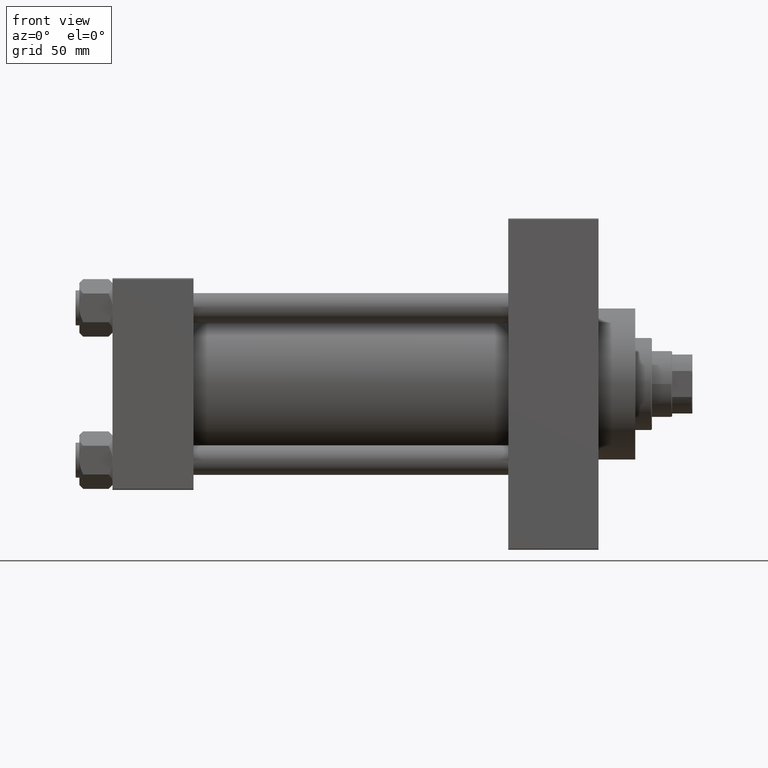
[diagram: clean part render]
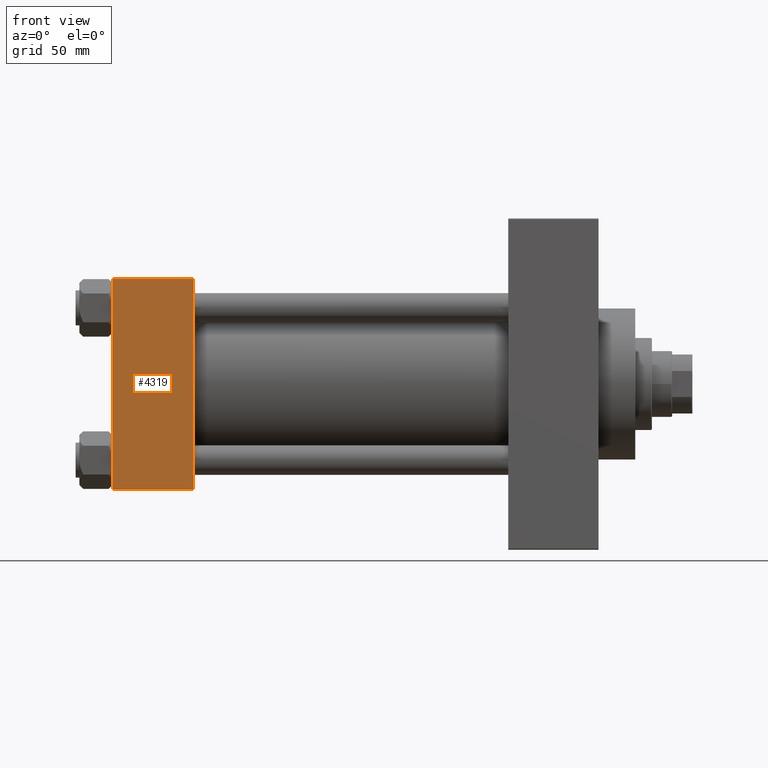
[diagram: same view with one face highlighted and labeled with its STEP entity id]
A machine part, front view. The second image highlights one B-rep face of the part: STEP entity #4319.
In plain terms, the highlighted planar face has unit normal (0, 1, 0).
Its self-contained STEP definition (entity closure, byte-faithful):
#454 = ORIENTED_EDGE ( 'NONE', *, *, #31968, .F. ) ;
#749 = CARTESIAN_POINT ( 'NONE',  ( 44.00000000000000000, -57.49999999999999289, -57.00000000000003553 ) ) ;
#2335 = VERTEX_POINT ( 'NONE', #15525 ) ;
#2962 = CARTESIAN_POINT ( 'NONE',  ( 44.00000000000000000, -57.50000000000000000, 56.99999999999997868 ) ) ;
#3059 = CARTESIAN_POINT ( 'NONE',  ( 0.000000000000000000, -57.49999999999999289, -57.00000000000003553 ) ) ;
#3235 = CARTESIAN_POINT ( 'NONE',  ( 44.00000000000000000, -57.50000000000000000, 56.99999999999997868 ) ) ;
#4319 = ADVANCED_FACE ( 'NONE', ( #18260 ), #29097, .F. ) ;
#4534 = LINE ( 'NONE', #38244, #24153 ) ;
#8794 = ORIENTED_EDGE ( 'NONE', *, *, #17688, .T. ) ;
#9843 = VERTEX_POINT ( 'NONE', #3235 ) ;
#10311 = DIRECTION ( 'NONE',  ( 0.000000000000000000, -6.033820786006285224E-17, 1.000000000000000000 ) ) ;
#10530 = VECTOR ( 'NONE', #12536, 1000.000000000000000 ) ;
#12536 = DIRECTION ( 'NONE',  ( 1.000000000000000000, 0.000000000000000000, 0.000000000000000000 ) ) ;
#14118 = EDGE_CURVE ( 'NONE', #9843, #16431, #18140, .T. ) ;
#14163 = DIRECTION ( 'NONE',  ( -0.000000000000000000, 1.000000000000000000, 6.033820786006285224E-17 ) ) ;
#14777 = CARTESIAN_POINT ( 'NONE',  ( 44.00000000000000000, -57.50000000000000000, 57.49999999999999289 ) ) ;
#15525 = CARTESIAN_POINT ( 'NONE',  ( 44.00000000000000000, -57.49999999999999289, -57.00000000000003553 ) ) ;
#16431 = VERTEX_POINT ( 'NONE', #44806 ) ;
#17688 = EDGE_CURVE ( 'NONE', #16431, #25511, #4534, .T. ) ;
#18140 = LINE ( 'NONE', #2962, #22502 ) ;
#18260 = FACE_OUTER_BOUND ( 'NONE', #22416, .T. ) ;
#22416 = EDGE_LOOP ( 'NONE', ( #8794, #33175, #454, #27273 ) ) ;
#22502 = VECTOR ( 'NONE', #46588, 1000.000000000000000 ) ;
#22519 = AXIS2_PLACEMENT_3D ( 'NONE', #43322, #14163, #10311 ) ;
#24153 = VECTOR ( 'NONE', #34400, 1000.000000000000000 ) ;
#24888 = EDGE_CURVE ( 'NONE', #25511, #2335, #33757, .T. ) ;
#25511 = VERTEX_POINT ( 'NONE', #3059 ) ;
#26042 = VECTOR ( 'NONE', #33322, 1000.000000000000000 ) ;
#27273 = ORIENTED_EDGE ( 'NONE', *, *, #14118, .T. ) ;
#29097 = PLANE ( 'NONE',  #22519 ) ;
#31968 = EDGE_CURVE ( 'NONE', #9843, #2335, #33086, .T. ) ;
#33086 = LINE ( 'NONE', #14777, #26042 ) ;
#33175 = ORIENTED_EDGE ( 'NONE', *, *, #24888, .T. ) ;
#33322 = DIRECTION ( 'NONE',  ( 0.000000000000000000, 6.033820786006285224E-17, -1.000000000000000000 ) ) ;
#33757 = LINE ( 'NONE', #749, #10530 ) ;
#34400 = DIRECTION ( 'NONE',  ( 0.000000000000000000, 6.033820786006285224E-17, -1.000000000000000000 ) ) ;
#38244 = CARTESIAN_POINT ( 'NONE',  ( 0.000000000000000000, -57.50000000000000000, 57.49999999999999289 ) ) ;
#43322 = CARTESIAN_POINT ( 'NONE',  ( 44.00000000000000000, -57.50000000000000000, 57.49999999999999289 ) ) ;
#44806 = CARTESIAN_POINT ( 'NONE',  ( 0.000000000000000000, -57.50000000000000000, 56.99999999999997868 ) ) ;
#46588 = DIRECTION ( 'NONE',  ( -1.000000000000000000, 0.000000000000000000, 0.000000000000000000 ) ) ;